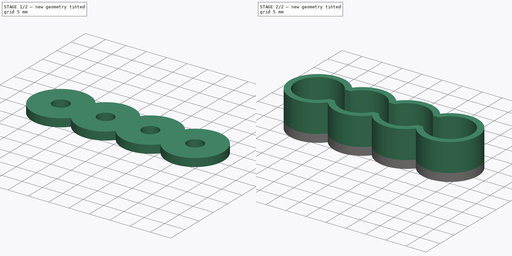
[diagram: build sequence overview — one tinted view per stage of 2, left to right]
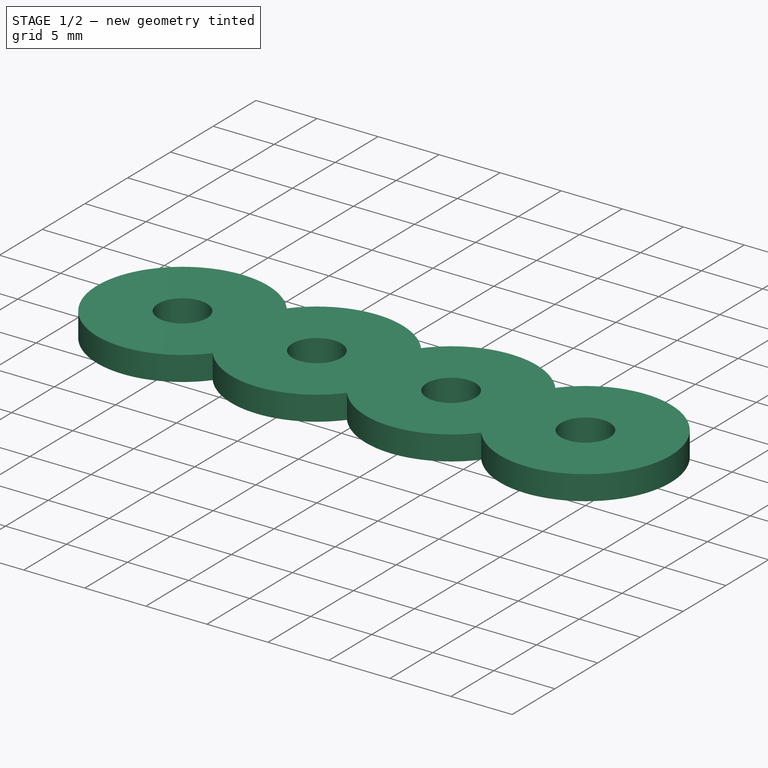
[diagram: stage 1 of 2 — iso view after this stage's code; geometry added in this stage tinted green]
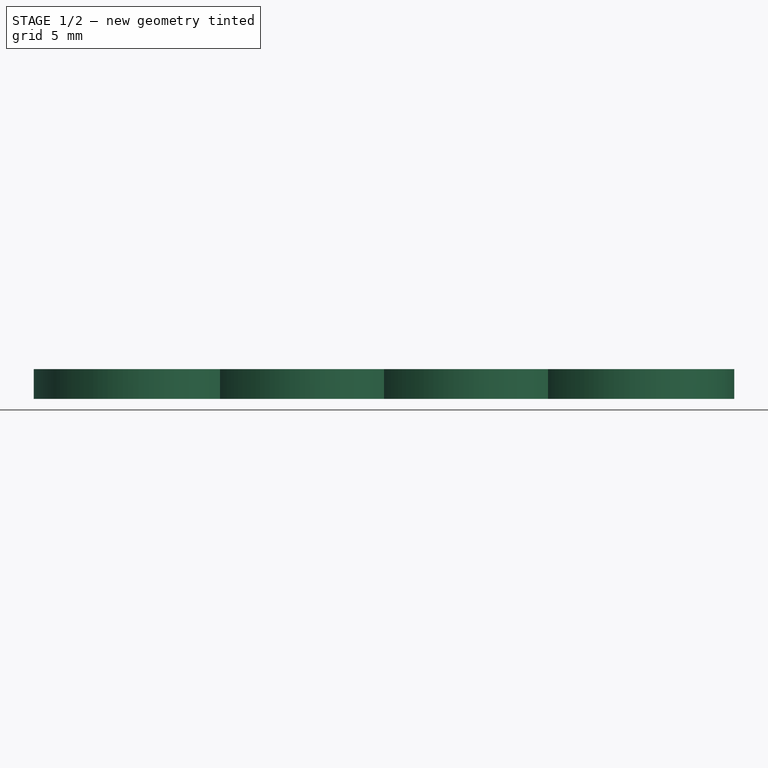
[diagram: stage 1 of 2 — front view after this stage's code; geometry added in this stage tinted green]
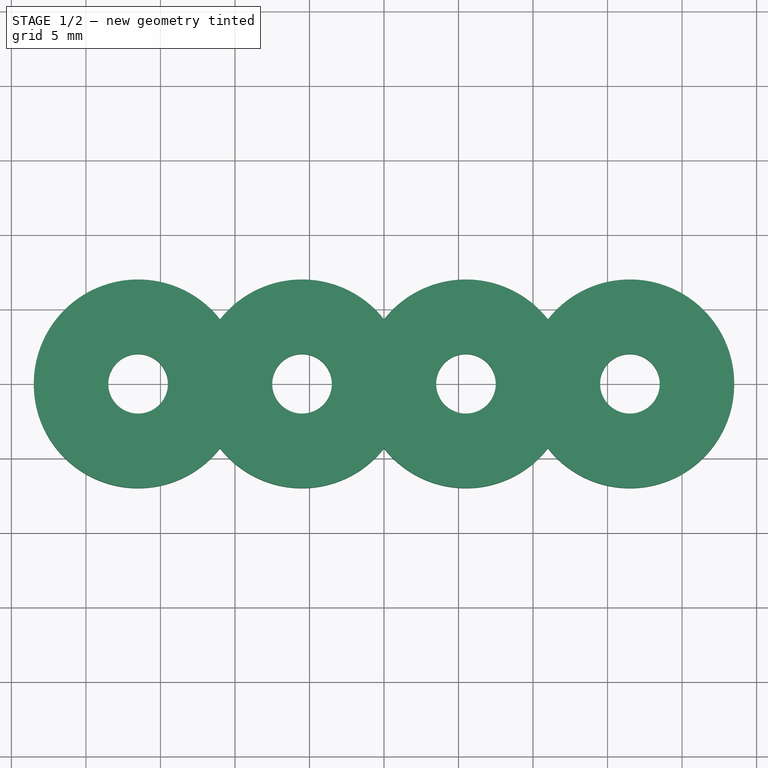
[diagram: stage 1 of 2 — top view after this stage's code; geometry added in this stage tinted green]
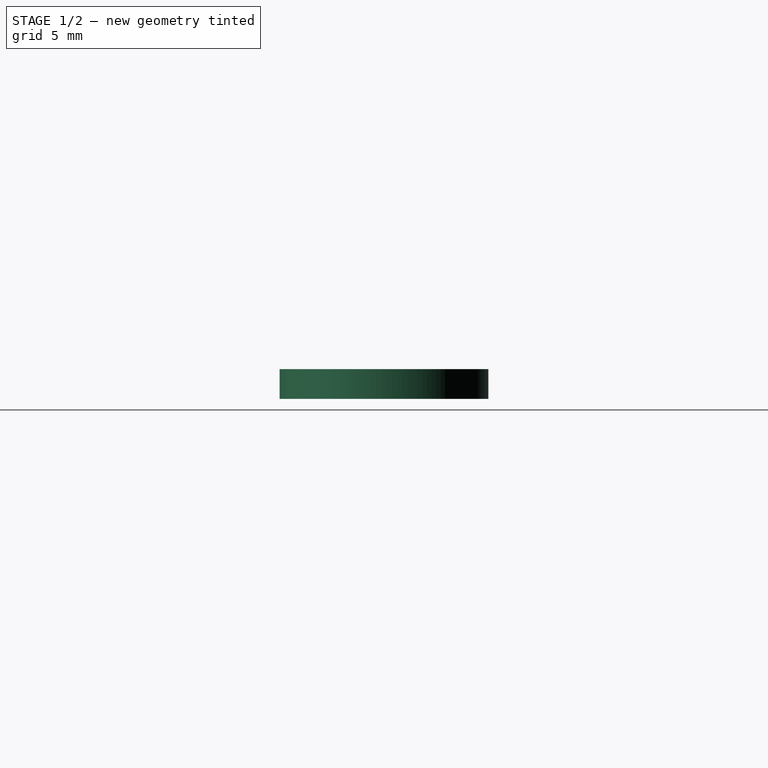
[diagram: stage 1 of 2 — right view after this stage's code; geometry added in this stage tinted green]
FCSTD DOCUMENT  (FreeCAD 0.16R)
Label: AAACaps
License: All rights reserved
LicenseURL: http://en.wikipedia.org/wiki/All_rights_reserved
objects: Sketcher::SketchObject×2, PartDesign::Pad×2, Spreadsheet::Sheet×1
note: 6 computed .brp shape members not serialized (recipe doc carries the construction recipe); baked Part::Feature solids carry a one-line shape summary decoded from their .brp

FEATURE [Sketcher::SketchObject] Sketch001  label="base"
  expr: Constraints[57] = Dimensions.Core
  expr: Constraints[12] = Dimensions.Outer
  expr: Constraints[1] = Dimensions.Inner
  sketch-geometry (24):
    g0: Circle [constr] CenterX=-16.5 CenterY=0 CenterZ=0 NormalX=0 NormalY=0 NormalZ=1 Radius=5.5
    g1: Circle [constr] CenterX=-5.5 CenterY=0 CenterZ=0 NormalX=0 NormalY=0 NormalZ=1 Radius=5.5
    g2: Circle [constr] CenterX=5.5 CenterY=0 CenterZ=0 NormalX=0 NormalY=0 NormalZ=1 Radius=5.5
    g3: Circle [constr] CenterX=16.5 CenterY=0 CenterZ=0 NormalX=0 NormalY=0 NormalZ=1 Radius=5.5
    g4: Circle [constr] CenterX=-16.5 CenterY=0 CenterZ=0 NormalX=0 NormalY=0 NormalZ=1 Radius=7
    g5: Circle [constr] CenterX=-5.5 CenterY=0 CenterZ=0 NormalX=0 NormalY=0 NormalZ=1 Radius=7
    g6: Circle [constr] CenterX=5.5 CenterY=0 CenterZ=0 NormalX=0 NormalY=0 NormalZ=1 Radius=7
    g7: Circle [constr] CenterX=16.5 CenterY=0 CenterZ=0 NormalX=0 NormalY=0 NormalZ=1 Radius=7
    g8: GeomPoint [constr] X=-11 Y=4.33013 Z=0
    g9: GeomPoint [constr] X=-11 Y=-4.33013 Z=0
    g10: GeomPoint [constr] X=0 Y=4.33013 Z=0
    g11: GeomPoint [constr] X=0 Y=-4.33013 Z=0
    g12: GeomPoint [constr] X=11 Y=4.33013 Z=0
    g13: GeomPoint [constr] X=11 Y=-4.33013 Z=0
    g14: ArcOfCircle CenterX=-16.5 CenterY=0 CenterZ=0 NormalX=0 NormalY=0 NormalZ=1 Radius=7 StartAngle=0.666946 EndAngle=5.61624
    g15: ArcOfCircle CenterX=-5.5 CenterY=0 CenterZ=0 NormalX=0 NormalY=0 NormalZ=1 Radius=7 StartAngle=0.666946 EndAngle=2.47465
    g16: ArcOfCircle CenterX=-5.5 CenterY=0 CenterZ=0 NormalX=0 NormalY=0 NormalZ=1 Radius=7 StartAngle=3.80854 EndAngle=5.61624
    g17: ArcOfCircle CenterX=5.5 CenterY=0 CenterZ=0 NormalX=0 NormalY=0 NormalZ=1 Radius=7 StartAngle=0.666946 EndAngle=2.47465
    g18: ArcOfCircle CenterX=5.5 CenterY=0 CenterZ=0 NormalX=0 NormalY=0 NormalZ=1 Radius=7 StartAngle=3.80854 EndAngle=5.61624
    g19: ArcOfCircle CenterX=16.5 CenterY=0 CenterZ=0 NormalX=0 NormalY=0 NormalZ=1 Radius=7 StartAngle=3.80854 EndAngle=8.75783
    g20: Circle CenterX=-16.5 CenterY=0 CenterZ=0 NormalX=0 NormalY=0 NormalZ=1 Radius=2
    g21: Circle CenterX=-5.5 CenterY=0 CenterZ=0 NormalX=0 NormalY=0 NormalZ=1 Radius=2
    g22: Circle CenterX=5.5 CenterY=0 CenterZ=0 NormalX=0 NormalY=0 NormalZ=1 Radius=2
    g23: Circle CenterX=16.5 CenterY=0 CenterZ=0 NormalX=0 NormalY=0 NormalZ=1 Radius=2
  constraints (58):
    c: PointOnObject(g0,g-1)
    c: Radius(g0) = 5.5
    c: Equal(g0,g1)
    c: PointOnObject(g-1,g1)
    c: Tangent(g0,g1)
    c: Equal(g0,g2)
    c: PointOnObject(g2,g-1)
    c: PointOnObject(g-1,g2)
    c: PointOnObject(g3,g-1)
    c: Equal(g0,g3)
    c: Tangent(g3,g2)
    c: Coincident(g4,g0)
    c: Radius(g4) = 7
    c: Coincident(g5,g1)
    c: Coincident(g6,g2)
    c: Coincident(g7,g3)
    c: Equal(g4,g5)
    c: Equal(g5,g6)
    c: Equal(g6,g7)
    c: PointOnObject(g8,g4)
    c: PointOnObject(g8,g5)
    c: PointOnObject(g9,g4)
    c: PointOnObject(g9,g5)
    c: PointOnObject(g1,g-1)
    c: PointOnObject(g10,g5)
    c: PointOnObject(g11,g5)
    c: PointOnObject(g10,g6)
    c: PointOnObject(g11,g6)
    c: PointOnObject(g12,g6)
    c: PointOnObject(g13,g6)
    c: PointOnObject(g13,g7)
    c: PointOnObject(g12,g7)
    c: Coincident(g14,g0)
    c: Coincident(g14,g8)
    c: Coincident(g14,g9)
    c: Coincident(g15,g1)
    c: Coincident(g15,g8)
    c: Coincident(g15,g10)
    c: Coincident(g16,g1)
    c: Coincident(g16,g9)
    c: Coincident(g16,g11)
    c: Coincident(g17,g2)
    c: Coincident(g17,g10)
    c: Coincident(g17,g12)
    c: Coincident(g18,g2)
    c: Coincident(g18,g11)
    c: Coincident(g18,g13)
    c: Coincident(g19,g3)
    c: Coincident(g19,g12)
    c: Coincident(g19,g13)
    c: Coincident(g20,g0)
    c: Coincident(g21,g1)
    c: Coincident(g22,g2)
    c: Coincident(g23,g3)
    c: Equal(g20,g21)
    c: Equal(g21,g22)
    c: Equal(g22,g23)
    c: Radius(g20) = 2
FEATURE [PartDesign::Pad] Pad001  label="Base"
  Length = 2
  Length2 = 100
  Sketch = -> Sketch001
  Type = 0
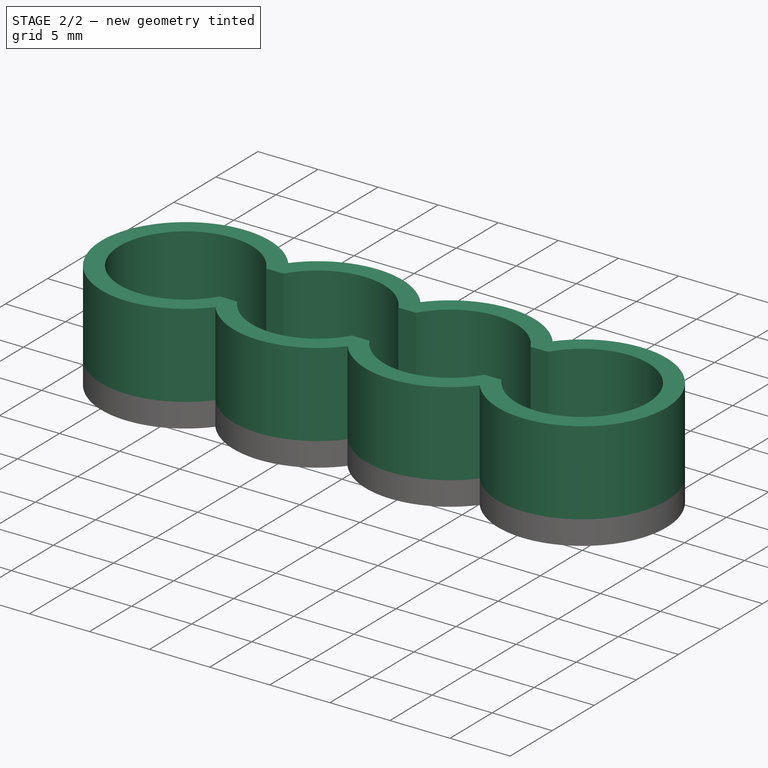
[diagram: stage 2 of 2 — iso view after this stage's code; geometry added in this stage tinted green]
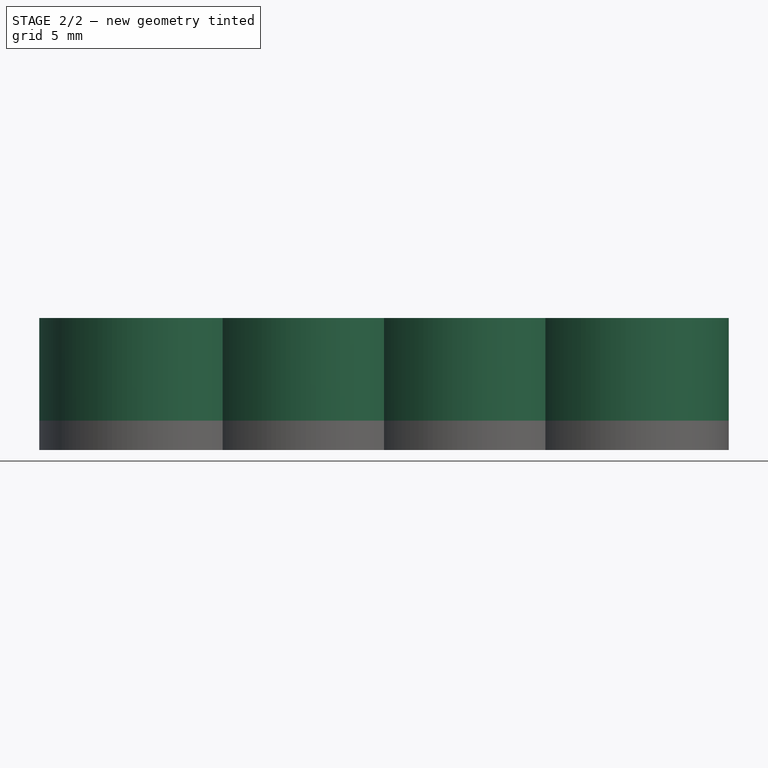
[diagram: stage 2 of 2 — front view after this stage's code; geometry added in this stage tinted green]
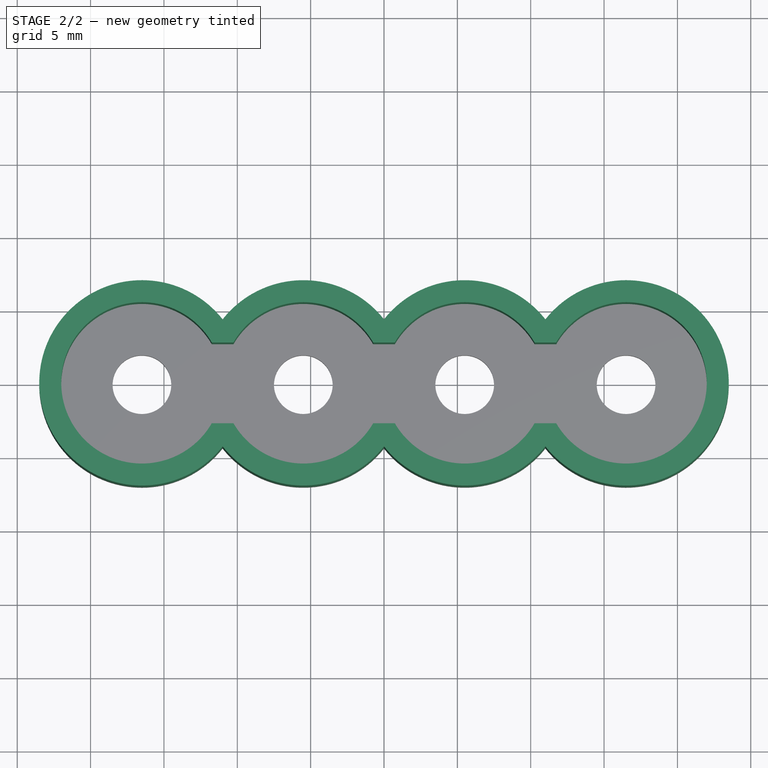
[diagram: stage 2 of 2 — top view after this stage's code; geometry added in this stage tinted green]
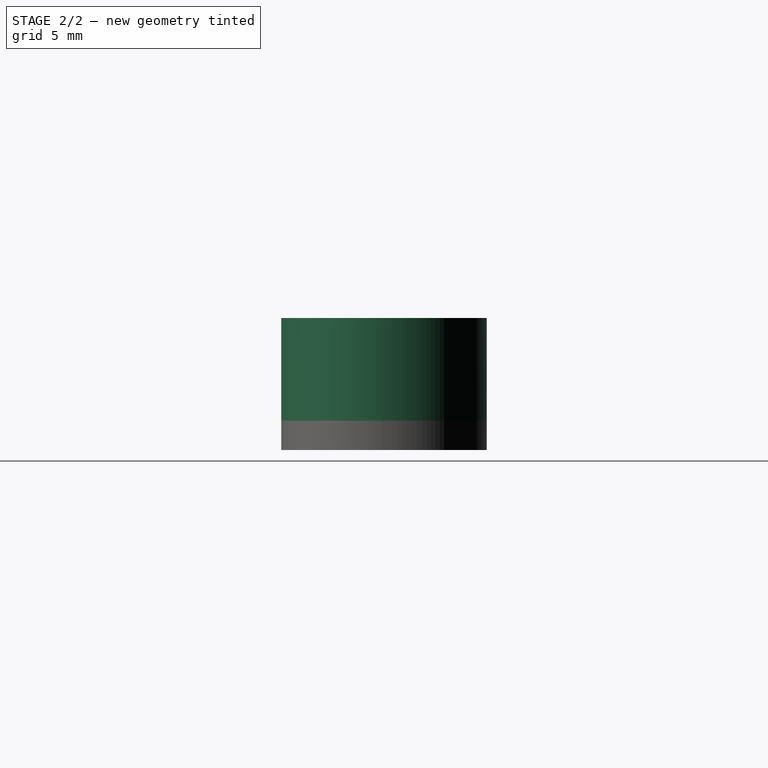
[diagram: stage 2 of 2 — right view after this stage's code; geometry added in this stage tinted green]
FEATURE [Sketcher::SketchObject] Sketch  label="side"
  Placement = pos=(0,0,2) rot=(0,0,1;0rad)
  Support = -> Pad001 [Face12]
  expr: Constraints[58] = Dimensions.Inner
  expr: Constraints[12] = Dimensions.Outer
  expr: Constraints[1] = Dimensions.Inner
  sketch-geometry (48):
    g0: Circle [constr] CenterX=-16.5 CenterY=0 CenterZ=0 NormalX=0 NormalY=0 NormalZ=1 Radius=5.5
    g1: Circle [constr] CenterX=-5.5 CenterY=0 CenterZ=0 NormalX=0 NormalY=0 NormalZ=1 Radius=5.5
    g2: Circle [constr] CenterX=5.5 CenterY=0 CenterZ=0 NormalX=0 NormalY=0 NormalZ=1 Radius=5.5
    g3: Circle [constr] CenterX=16.5 CenterY=0 CenterZ=0 NormalX=0 NormalY=0 NormalZ=1 Radius=5.5
    g4: Circle [constr] CenterX=-16.5 CenterY=0 CenterZ=0 NormalX=0 NormalY=0 NormalZ=1 Radius=7
    g5: Circle [constr] CenterX=-5.5 CenterY=0 CenterZ=0 NormalX=0 NormalY=0 NormalZ=1 Radius=7
    g6: Circle [constr] CenterX=5.5 CenterY=0 CenterZ=0 NormalX=0 NormalY=0 NormalZ=1 Radius=7
    g7: Circle [constr] CenterX=16.5 CenterY=0 CenterZ=0 NormalX=0 NormalY=0 NormalZ=1 Radius=7
    g8: GeomPoint [constr] X=-11 Y=4.33013 Z=0
    g9: GeomPoint [constr] X=-11 Y=-4.33013 Z=0
    g10: GeomPoint [constr] X=0 Y=4.33013 Z=0
    g11: GeomPoint [constr] X=0 Y=-4.33013 Z=0
    g12: GeomPoint [constr] X=11 Y=4.33013 Z=0
    g13: GeomPoint [constr] X=11 Y=-4.33013 Z=0
    g14: ArcOfCircle CenterX=-16.5 CenterY=0 CenterZ=0 NormalX=0 NormalY=0 NormalZ=1 Radius=7 StartAngle=0.666946 EndAngle=5.61624
    g15: ArcOfCircle CenterX=-5.5 CenterY=0 CenterZ=0 NormalX=0 NormalY=0 NormalZ=1 Radius=7 StartAngle=0.666946 EndAngle=2.47465
    g16: ArcOfCircle CenterX=-5.5 CenterY=0 CenterZ=0 NormalX=0 NormalY=0 NormalZ=1 Radius=7 StartAngle=3.80854 EndAngle=5.61624
    g17: ArcOfCircle CenterX=5.5 CenterY=0 CenterZ=0 NormalX=0 NormalY=0 NormalZ=1 Radius=7 StartAngle=0.666946 EndAngle=2.47465
    g18: ArcOfCircle CenterX=5.5 CenterY=0 CenterZ=0 NormalX=0 NormalY=0 NormalZ=1 Radius=7 StartAngle=3.80854 EndAngle=5.61624
    g19: ArcOfCircle CenterX=16.5 CenterY=0 CenterZ=0 NormalX=0 NormalY=0 NormalZ=1 Radius=7 StartAngle=3.80854 EndAngle=8.75783
    g20: LineSegment [constr] StartX=-16.5 StartY=2.75 StartZ=0 EndX=16.5 EndY=2.75 EndZ=0
    g21: LineSegment [constr] StartX=16.5 StartY=2.75 StartZ=0 EndX=16.5 EndY=-2.75 EndZ=0
    g22: LineSegment [constr] StartX=16.5 StartY=-2.75 StartZ=0 EndX=-16.5 EndY=-2.75 EndZ=0
    g23: LineSegment [constr] StartX=-16.5 StartY=-2.75 StartZ=0 EndX=-16.5 EndY=2.75 EndZ=0
    g24: GeomPoint [constr] X=-11.7369 Y=2.75 Z=0
    g25: GeomPoint [constr] X=-10.2631 Y=2.75 Z=0
    g26: GeomPoint [constr] X=-0.73686 Y=2.75 Z=0
    g27: GeomPoint [constr] X=0.73686 Y=2.75 Z=0
    g28: GeomPoint [constr] X=10.2631 Y=2.75 Z=0
    g29: GeomPoint [constr] X=11.7369 Y=2.75 Z=0
    g30: GeomPoint [constr] X=11.7369 Y=-2.75 Z=0
    g31: GeomPoint [constr] X=10.2631 Y=-2.75 Z=0
    g32: GeomPoint [constr] X=0.73686 Y=-2.75 Z=0
    g33: GeomPoint [constr] X=-0.73686 Y=-2.75 Z=0
    g34: GeomPoint [constr] X=-10.2631 Y=-2.75 Z=0
    g35: GeomPoint [constr] X=-11.7369 Y=-2.75 Z=0
    g36: ArcOfCircle CenterX=-16.5 CenterY=0 CenterZ=0 NormalX=0 NormalY=0 NormalZ=1 Radius=5.5 StartAngle=0.523599 EndAngle=5.75959
    g37: ArcOfCircle CenterX=-5.5 CenterY=0 CenterZ=0 NormalX=0 NormalY=0 NormalZ=1 Radius=5.5 StartAngle=0.523599 EndAngle=2.61799
    g38: ArcOfCircle CenterX=-5.5 CenterY=0 CenterZ=0 NormalX=0 NormalY=0 NormalZ=1 Radius=5.5 StartAngle=3.66519 EndAngle=5.75959
    g39: ArcOfCircle CenterX=5.5 CenterY=0 CenterZ=0 NormalX=0 NormalY=0 NormalZ=1 Radius=5.5 StartAngle=0.523599 EndAngle=2.61799
    g40: ArcOfCircle CenterX=5.5 CenterY=0 CenterZ=0 NormalX=0 NormalY=0 NormalZ=1 Radius=5.5 StartAngle=3.66519 EndAngle=5.75959
    g41: ArcOfCircle CenterX=16.5 CenterY=0 CenterZ=0 NormalX=0 NormalY=0 NormalZ=1 Radius=5.5 StartAngle=3.66519 EndAngle=8.90118
    g42: LineSegment StartX=-11.7369 StartY=2.75 StartZ=0 EndX=-10.2631 EndY=2.75 EndZ=0
    g43: LineSegment StartX=-11.7369 StartY=-2.75 StartZ=0 EndX=-10.2631 EndY=-2.75 EndZ=0
    g44: LineSegment StartX=-0.73686 StartY=2.75 StartZ=0 EndX=0.73686 EndY=2.75 EndZ=0
    g45: LineSegment StartX=-0.73686 StartY=-2.75 StartZ=0 EndX=0.73686 EndY=-2.75 EndZ=0
    g46: LineSegment StartX=10.2631 StartY=2.75 StartZ=0 EndX=11.7369 EndY=2.75 EndZ=0
    g47: LineSegment StartX=10.2631 StartY=-2.75 StartZ=0 EndX=11.7369 EndY=-2.75 EndZ=0
  constraints (115):
    c: PointOnObject(g0,g-1)
    c: Radius(g0) = 5.5
    c: Equal(g0,g1)
    c: PointOnObject(g-1,g1)
    c: Tangent(g0,g1)
    c: Equal(g0,g2)
    c: PointOnObject(g2,g-1)
    c: PointOnObject(g-1,g2)
    c: PointOnObject(g3,g-1)
    c: Equal(g0,g3)
    c: Tangent(g3,g2)
    c: Coincident(g4,g0)
    c: Radius(g4) = 7
    c: Coincident(g5,g1)
    c: Coincident(g6,g2)
    c: Coincident(g7,g3)
    c: Equal(g4,g5)
    c: Equal(g5,g6)
    c: Equal(g6,g7)
    c: PointOnObject(g8,g4)
    c: PointOnObject(g8,g5)
    c: PointOnObject(g9,g4)
    c: PointOnObject(g9,g5)
    c: PointOnObject(g1,g-1)
    c: PointOnObject(g10,g5)
    c: PointOnObject(g11,g5)
    c: PointOnObject(g10,g6)
    c: PointOnObject(g11,g6)
    c: PointOnObject(g12,g6)
    c: PointOnObject(g13,g6)
    c: PointOnObject(g13,g7)
    c: PointOnObject(g12,g7)
    c: Coincident(g14,g0)
    c: Coincident(g14,g8)
    c: Coincident(g14,g9)
    c: Coincident(g15,g1)
    c: Coincident(g15,g8)
    c: Coincident(g15,g10)
    c: Coincident(g16,g1)
    c: Coincident(g16,g9)
    c: Coincident(g16,g11)
    c: Coincident(g17,g2)
    c: Coincident(g17,g10)
    c: Coincident(g17,g12)
    c: Coincident(g18,g2)
    c: Coincident(g18,g11)
    c: Coincident(g18,g13)
    c: Coincident(g19,g3)
    c: Coincident(g19,g12)
    c: Coincident(g19,g13)
    c: Coincident(g20,g21)
    c: Coincident(g21,g22)
    c: Coincident(g22,g23)
    c: Coincident(g23,g20)
    c: Vertical(g21)
    c: Vertical(g23)
    c: Symmetric(g20,g21,g-1)
    c: PointOnObject(g0,g23)
    c: DistanceY(g23,g23) = 5.5
    c: PointOnObject(g24,g0)
    c: PointOnObject(g25,g1)
    c: PointOnObject(g26,g1)
    c: PointOnObject(g27,g2)
    c: PointOnObject(g28,g2)
    c: PointOnObject(g29,g3)
    c: PointOnObject(g30,g3)
    c: PointOnObject(g31,g2)
    c: PointOnObject(g32,g2)
    c: PointOnObject(g33,g1)
    c: PointOnObject(g34,g1)
    c: PointOnObject(g35,g0)
    c: PointOnObject(g24,g20)
    c: PointOnObject(g25,g20)
    c: PointOnObject(g26,g20)
    c: PointOnObject(g27,g20)
    c: PointOnObject(g28,g20)
    c: PointOnObject(g29,g20)
    c: PointOnObject(g30,g22)
    c: PointOnObject(g31,g22)
    c: PointOnObject(g32,g22)
    c: PointOnObject(g33,g22)
    c: PointOnObject(g34,g22)
    c: PointOnObject(g35,g22)
    c: Coincident(g36,g0)
    c: Coincident(g36,g24)
    c: Coincident(g36,g35)
    c: Coincident(g37,g1)
    c: Coincident(g37,g25)
    c: Coincident(g37,g26)
    c: Coincident(g38,g1)
    c: Coincident(g38,g34)
    c: Coincident(g38,g33)
    c: Coincident(g39,g2)
    c: Coincident(g39,g27)
    c: Coincident(g39,g28)
    c: Coincident(g40,g2)
    c: Coincident(g40,g32)
    c: Coincident(g40,g31)
    c: Coincident(g41,g3)
    c: Coincident(g41,g29)
    c: Coincident(g41,g30)
    c: Coincident(g42,g24)
    c: Coincident(g42,g25)
    c: Coincident(g43,g35)
    c: Coincident(g43,g34)
    c: Coincident(g44,g26)
    c: Coincident(g44,g27)
    c: Horizontal(g44)
    c: Coincident(g45,g33)
    c: Coincident(g45,g32)
    c: Horizontal(g45)
    c: Coincident(g46,g28)
    c: Coincident(g46,g29)
    c: Coincident(g47,g31)
    c: Coincident(g47,g30)
FEATURE [PartDesign::Pad] Pad  label="Side"
  Length = 7
  Length2 = 100
  Sketch = -> Sketch
  Type = 0
FEATURE [Spreadsheet::Sheet] Spreadsheet  label="Dimensions"
  cells = B2=Inner; C2(Inner)=5.5; B3=Outer; C3(Outer)=7; B4=Core; C4(Core)=2
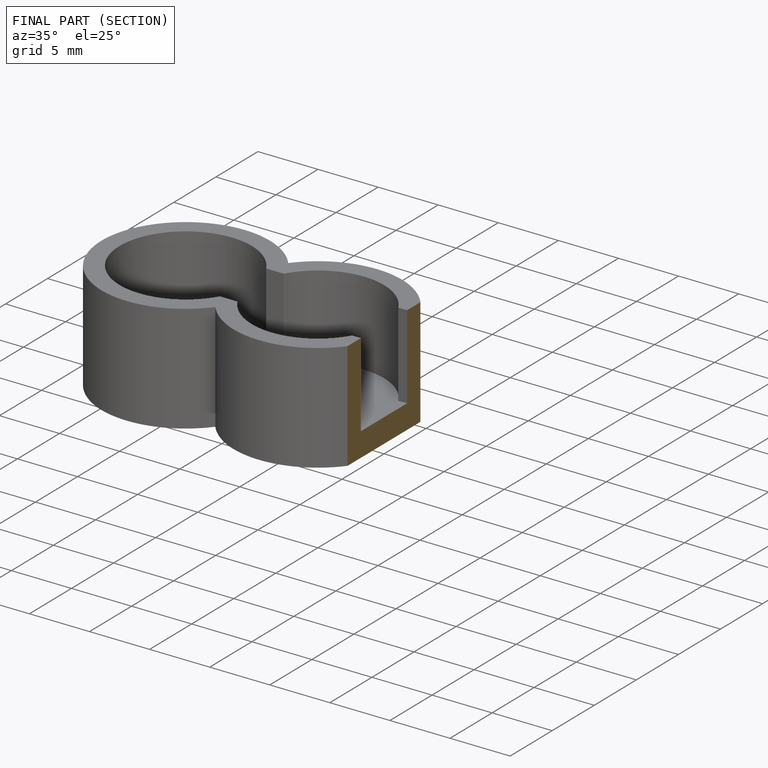
[diagram: finished part — half-section view (interior)]
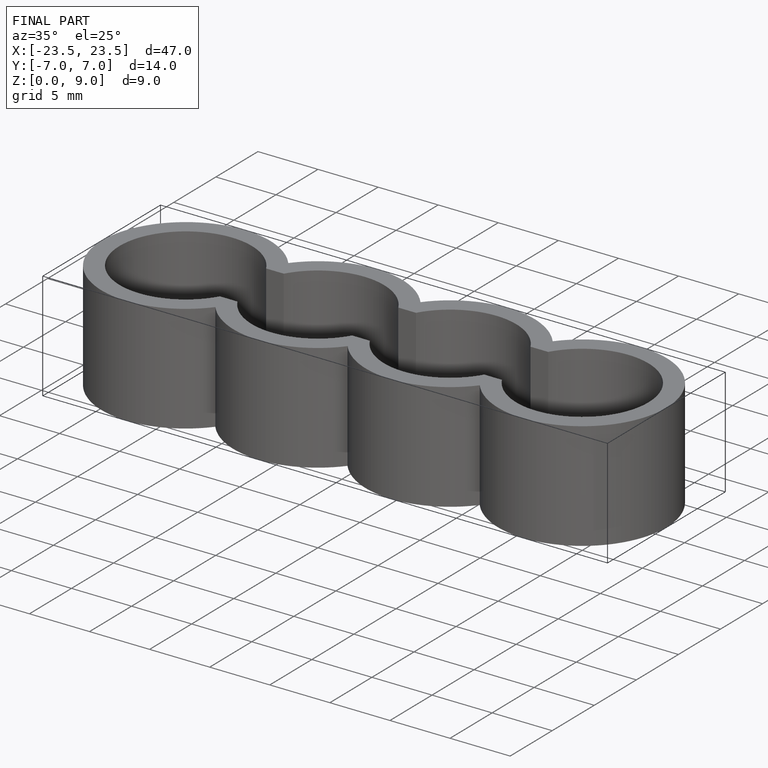
[diagram: finished part — iso view with bounding-box wireframe]
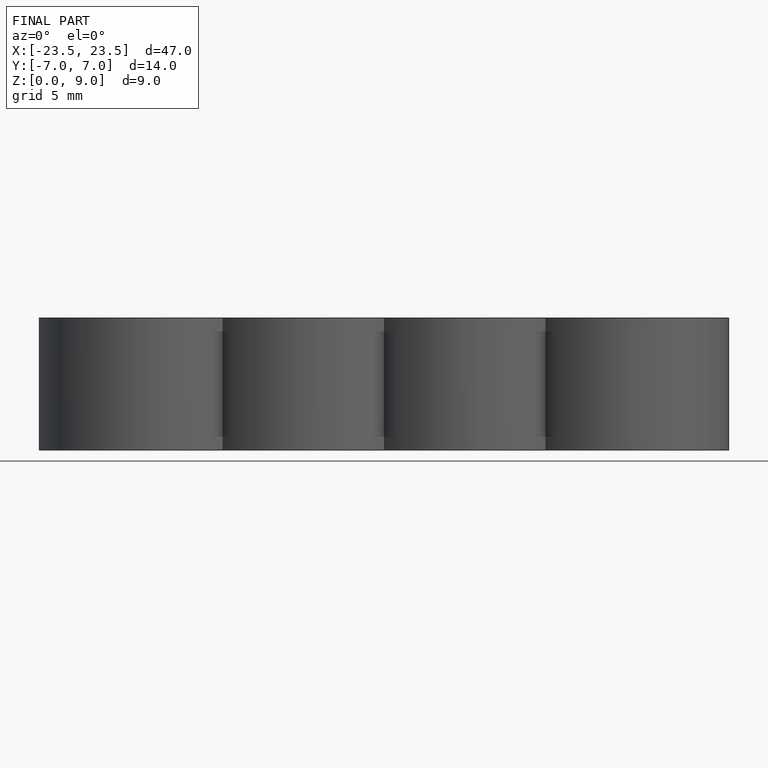
[diagram: finished part — front view with bounding-box wireframe]
